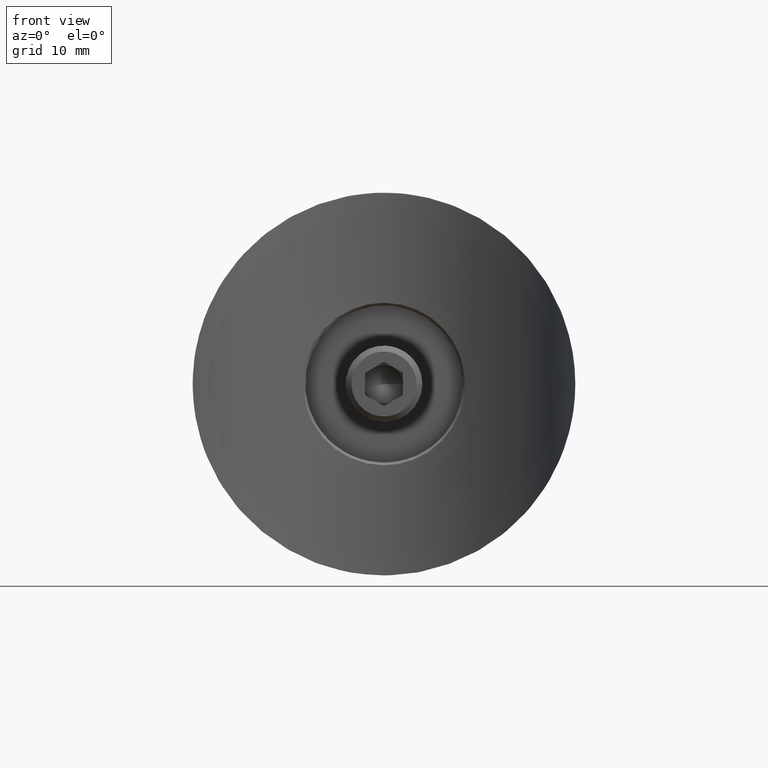
[diagram: clean part render]
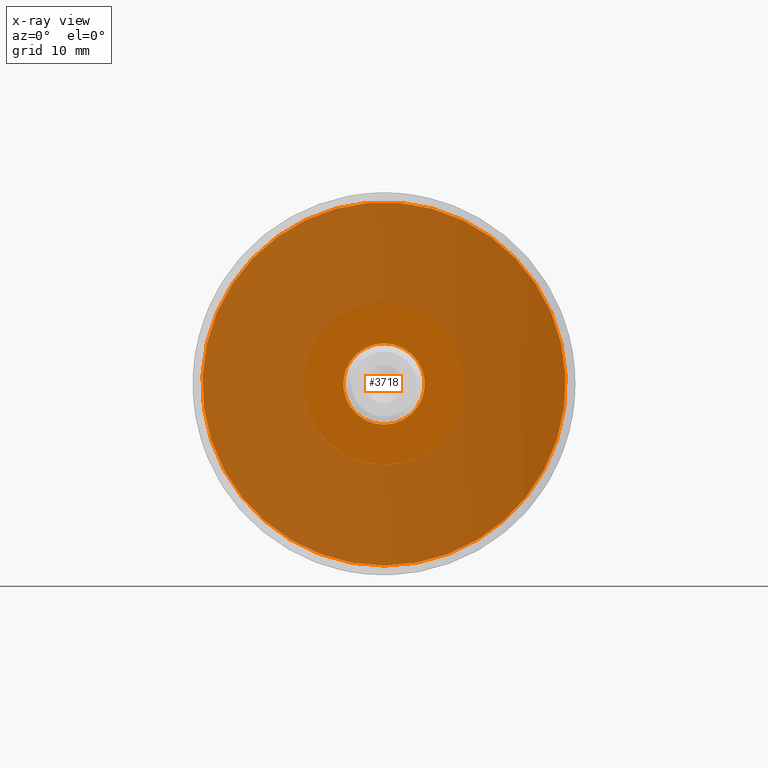
[diagram: x-ray — body ghosted, one internal face saturated and labeled with its STEP entity id]
A machine part, front view, then the same camera in x-ray: the body is ghosted and one INTERNAL B-rep face — a face not visible from any outside direction — is saturated and labeled: STEP entity #3718.
In plain terms, the highlighted planar face has unit normal (0, -1, 0).
Its self-contained STEP definition (entity closure, byte-faithful):
#354 = DIRECTION ( 'NONE',  ( 0.000000000000000000, 0.000000000000000000, -1.000000000000000000 ) ) ;
#401 = ORIENTED_EDGE ( 'NONE', *, *, #9471, .T. ) ;
#1828 = CARTESIAN_POINT ( 'NONE',  ( 0.000000000000000000, 0.000000000000000000, -19.00000000000000000 ) ) ;
#2156 = AXIS2_PLACEMENT_3D ( 'NONE', #2524, #7200, #7152 ) ;
#2524 = CARTESIAN_POINT ( 'NONE',  ( 0.000000000000000000, 0.000000000000000000, 0.000000000000000000 ) ) ;
#3303 = CIRCLE ( 'NONE', #5232, 4.250000000000000000 ) ;
#3718 = ADVANCED_FACE ( 'NONE', ( #9223, #12506 ), #6135, .T. ) ;
#3855 = CARTESIAN_POINT ( 'NONE',  ( 0.000000000000000000, 0.000000000000000000, 0.000000000000000000 ) ) ;
#5232 = AXIS2_PLACEMENT_3D ( 'NONE', #3855, #13396, #12060 ) ;
#5297 = CARTESIAN_POINT ( 'NONE',  ( 0.000000000000000000, 0.000000000000000000, -4.250000000000000000 ) ) ;
#5320 = CIRCLE ( 'NONE', #2156, 19.00000000000000000 ) ;
#5989 = ORIENTED_EDGE ( 'NONE', *, *, #6502, .F. ) ;
#6135 = PLANE ( 'NONE',  #9569 ) ;
#6502 = EDGE_CURVE ( 'NONE', #11029, #11029, #3303, .T. ) ;
#7152 = DIRECTION ( 'NONE',  ( 0.000000000000000000, 0.000000000000000000, -1.000000000000000000 ) ) ;
#7200 = DIRECTION ( 'NONE',  ( -0.000000000000000000, -1.000000000000000000, -0.000000000000000000 ) ) ;
#7426 = DIRECTION ( 'NONE',  ( 0.000000000000000000, -1.000000000000000000, -0.000000000000000000 ) ) ;
#9220 = EDGE_LOOP ( 'NONE', ( #401 ) ) ;
#9223 = FACE_BOUND ( 'NONE', #12850, .T. ) ;
#9471 = EDGE_CURVE ( 'NONE', #13420, #13420, #5320, .T. ) ;
#9569 = AXIS2_PLACEMENT_3D ( 'NONE', #11943, #7426, #354 ) ;
#11029 = VERTEX_POINT ( 'NONE', #5297 ) ;
#11943 = CARTESIAN_POINT ( 'NONE',  ( 0.000000000000000000, 0.000000000000000000, 0.000000000000000000 ) ) ;
#12060 = DIRECTION ( 'NONE',  ( 0.000000000000000000, 0.000000000000000000, -1.000000000000000000 ) ) ;
#12506 = FACE_OUTER_BOUND ( 'NONE', #9220, .T. ) ;
#12850 = EDGE_LOOP ( 'NONE', ( #5989 ) ) ;
#13396 = DIRECTION ( 'NONE',  ( -0.000000000000000000, -1.000000000000000000, -0.000000000000000000 ) ) ;
#13420 = VERTEX_POINT ( 'NONE', #1828 ) ;